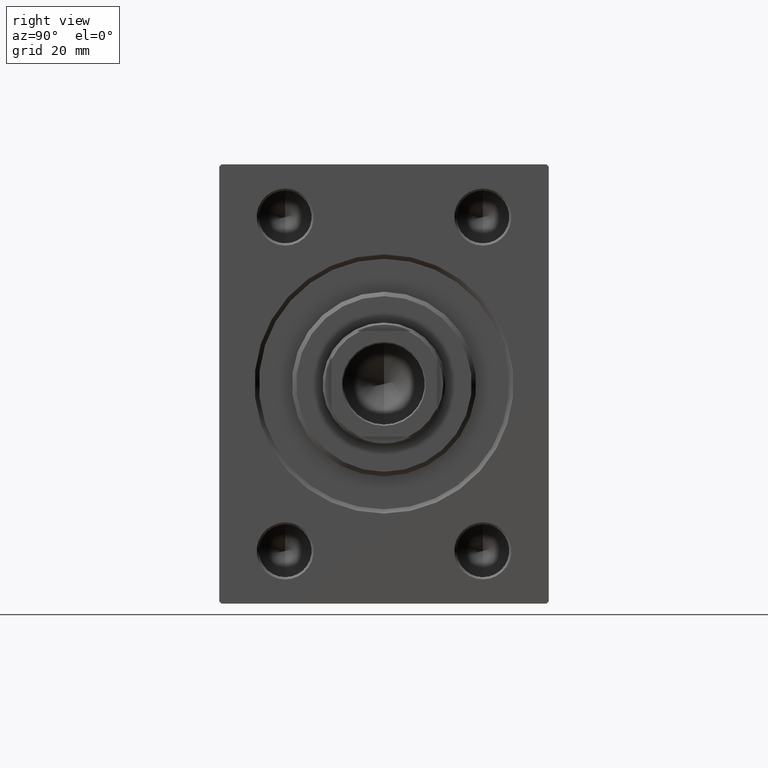
[diagram: clean part render]
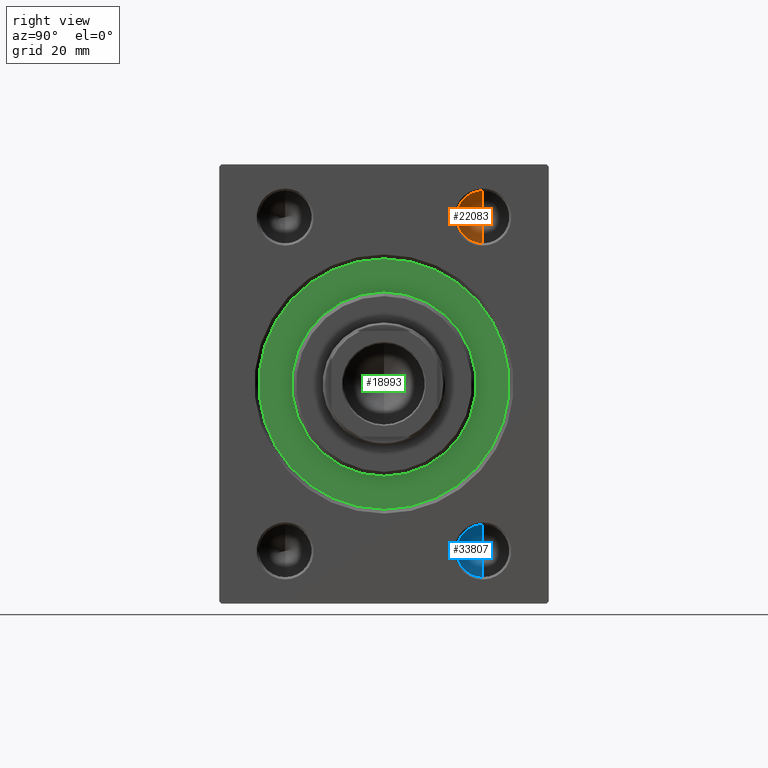
[diagram: same view with three faces highlighted in distinct colors, each labeled with its STEP entity id]
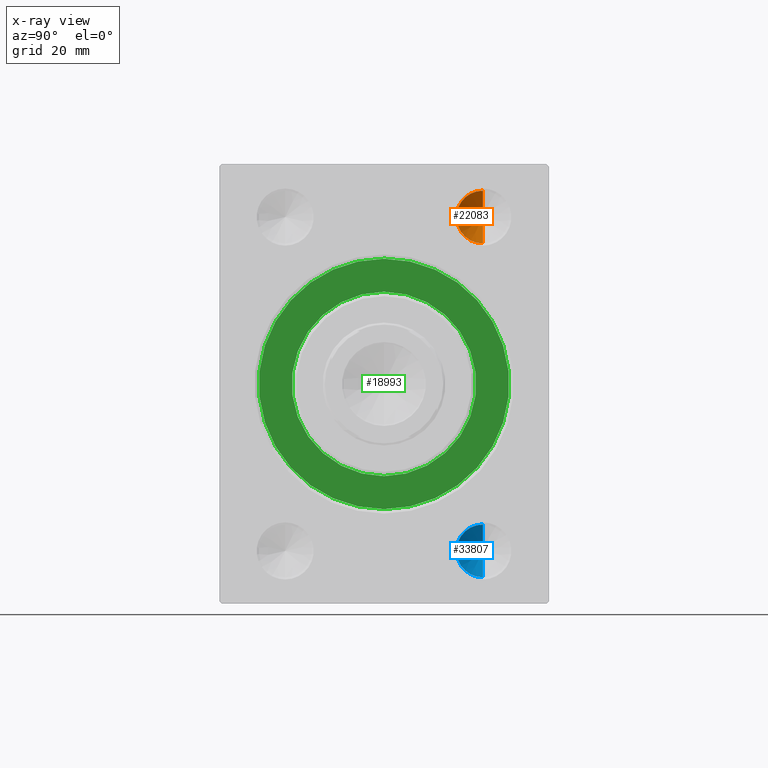
[diagram: x-ray of the same camera — body ghosted, the three highlighted faces saturated]
A machine part, right view with three faces highlighted in distinct colors.
The next image is the same camera in x-ray (body ghosted, the three faces saturated) — at least one of them is partly hidden behind the body in this view.
Their STEP definitions:

[orange] entity #22083 — the highlighted conical surface has half-angle 59 deg.
#871 = CARTESIAN_POINT ( 'NONE',  ( 23.60516371416536074, 22.49999999999998579, -38.00000000000000000 ) ) ;
#1373 = CARTESIAN_POINT ( 'NONE',  ( 20.00000000000000000, 22.49999999999999289, -44.00000000000000000 ) ) ;
#3926 = ORIENTED_EDGE ( 'NONE', *, *, #17652, .T. ) ;
#4791 = DIRECTION ( 'NONE',  ( 0.000000000000000000, 0.000000000000000000, 1.000000000000000000 ) ) ;
#10217 = CARTESIAN_POINT ( 'NONE',  ( 20.00000000000000000, 22.49999999999999289, -38.00000000000000000 ) ) ;
#11031 = ORIENTED_EDGE ( 'NONE', *, *, #31404, .T. ) ;
#11674 = AXIS2_PLACEMENT_3D ( 'NONE', #10217, #17037, #34540 ) ;
#11907 = LINE ( 'NONE', #28741, #14422 ) ;
#14422 = VECTOR ( 'NONE', #21712, 1000.000000000000000 ) ;
#14582 = CONICAL_SURFACE ( 'NONE', #11674, 5.999999999999998224, 1.029744258676653867 ) ;
#15167 = ORIENTED_EDGE ( 'NONE', *, *, #15689, .F. ) ;
#15689 = EDGE_CURVE ( 'NONE', #41168, #29986, #11907, .T. ) ;
#17037 = DIRECTION ( 'NONE',  ( -1.000000000000000000, -0.000000000000000000, -0.000000000000000000 ) ) ;
#17652 = EDGE_CURVE ( 'NONE', #17686, #29986, #39135, .T. ) ;
#17686 = VERTEX_POINT ( 'NONE', #1373 ) ;
#18025 = DIRECTION ( 'NONE',  ( -0.5150380749100547106, 1.049727191138618326E-16, -0.8571673007021120005 ) ) ;
#20673 = FACE_OUTER_BOUND ( 'NONE', #44239, .T. ) ;
#21712 = DIRECTION ( 'NONE',  ( -0.5150380749100547106, 0.000000000000000000, 0.8571673007021120005 ) ) ;
#22083 = ADVANCED_FACE ( 'NONE', ( #20673 ), #14582, .F. ) ;
#24614 = LINE ( 'NONE', #25067, #39714 ) ;
#25067 = CARTESIAN_POINT ( 'NONE',  ( 20.00000000000000000, 22.49999999999999289, -44.00000000000000000 ) ) ;
#28741 = CARTESIAN_POINT ( 'NONE',  ( 20.00000000000000000, 22.49999999999999289, -32.00000000000000000 ) ) ;
#29986 = VERTEX_POINT ( 'NONE', #43989 ) ;
#31404 = EDGE_CURVE ( 'NONE', #41168, #17686, #24614, .T. ) ;
#34540 = DIRECTION ( 'NONE',  ( 0.000000000000000000, 0.000000000000000000, 1.000000000000000000 ) ) ;
#35283 = DIRECTION ( 'NONE',  ( -1.000000000000000000, -0.000000000000000000, -0.000000000000000000 ) ) ;
#39135 = CIRCLE ( 'NONE', #43519, 5.999999999999998224 ) ;
#39714 = VECTOR ( 'NONE', #18025, 1000.000000000000000 ) ;
#41168 = VERTEX_POINT ( 'NONE', #871 ) ;
#43021 = CARTESIAN_POINT ( 'NONE',  ( 20.00000000000000000, 22.49999999999999289, -38.00000000000000000 ) ) ;
#43519 = AXIS2_PLACEMENT_3D ( 'NONE', #43021, #35283, #4791 ) ;
#43989 = CARTESIAN_POINT ( 'NONE',  ( 20.00000000000000000, 22.49999999999999289, -32.00000000000000000 ) ) ;
#44239 = EDGE_LOOP ( 'NONE', ( #15167, #11031, #3926 ) ) ;

[blue] entity #33807 — the highlighted conical surface has half-angle 59 deg.
#860 = CARTESIAN_POINT ( 'NONE',  ( 20.00000000000000000, 22.49999999999999289, 44.00000000000000000 ) ) ;
#3201 = CARTESIAN_POINT ( 'NONE',  ( 20.00000000000000000, 22.49999999999999289, 32.00000000000000000 ) ) ;
#4032 = LINE ( 'NONE', #860, #18065 ) ;
#5376 = EDGE_CURVE ( 'NONE', #18192, #13691, #9383, .T. ) ;
#6234 = EDGE_LOOP ( 'NONE', ( #18521, #12811, #20365 ) ) ;
#7694 = DIRECTION ( 'NONE',  ( -0.5150380749100547106, 0.000000000000000000, 0.8571673007021120005 ) ) ;
#9383 = LINE ( 'NONE', #3201, #36021 ) ;
#12385 = DIRECTION ( 'NONE',  ( 0.000000000000000000, 0.000000000000000000, 1.000000000000000000 ) ) ;
#12811 = ORIENTED_EDGE ( 'NONE', *, *, #5376, .T. ) ;
#13691 = VERTEX_POINT ( 'NONE', #20542 ) ;
#18065 = VECTOR ( 'NONE', #7694, 1000.000000000000000 ) ;
#18192 = VERTEX_POINT ( 'NONE', #37639 ) ;
#18521 = ORIENTED_EDGE ( 'NONE', *, *, #40347, .F. ) ;
#18992 = CARTESIAN_POINT ( 'NONE',  ( 20.00000000000000000, 22.49999999999999289, 38.00000000000000000 ) ) ;
#20365 = ORIENTED_EDGE ( 'NONE', *, *, #43982, .T. ) ;
#20542 = CARTESIAN_POINT ( 'NONE',  ( 20.00000000000000000, 22.49999999999999289, 32.00000000000000000 ) ) ;
#22420 = CARTESIAN_POINT ( 'NONE',  ( 20.00000000000000000, 22.49999999999999289, 38.00000000000000000 ) ) ;
#22648 = DIRECTION ( 'NONE',  ( 0.000000000000000000, 0.000000000000000000, 1.000000000000000000 ) ) ;
#22860 = DIRECTION ( 'NONE',  ( -1.000000000000000000, -0.000000000000000000, -0.000000000000000000 ) ) ;
#25359 = DIRECTION ( 'NONE',  ( -1.000000000000000000, -0.000000000000000000, -0.000000000000000000 ) ) ;
#26658 = DIRECTION ( 'NONE',  ( -0.5150380749100547106, 1.049727191138618326E-16, -0.8571673007021120005 ) ) ;
#33807 = ADVANCED_FACE ( 'NONE', ( #43321 ), #44155, .F. ) ;
#35623 = AXIS2_PLACEMENT_3D ( 'NONE', #18992, #25359, #12385 ) ;
#36021 = VECTOR ( 'NONE', #26658, 1000.000000000000000 ) ;
#37639 = CARTESIAN_POINT ( 'NONE',  ( 23.60516371416536074, 22.49999999999998579, 38.00000000000000000 ) ) ;
#38262 = VERTEX_POINT ( 'NONE', #38930 ) ;
#38930 = CARTESIAN_POINT ( 'NONE',  ( 20.00000000000000000, 22.49999999999999289, 44.00000000000000000 ) ) ;
#40347 = EDGE_CURVE ( 'NONE', #18192, #38262, #4032, .T. ) ;
#42713 = AXIS2_PLACEMENT_3D ( 'NONE', #22420, #22860, #22648 ) ;
#43321 = FACE_OUTER_BOUND ( 'NONE', #6234, .T. ) ;
#43982 = EDGE_CURVE ( 'NONE', #13691, #38262, #45057, .T. ) ;
#44155 = CONICAL_SURFACE ( 'NONE', #42713, 5.999999999999998224, 1.029744258676653867 ) ;
#45057 = CIRCLE ( 'NONE', #35623, 5.999999999999998224 ) ;

[green] entity #18993 — the highlighted planar face has unit normal (-1, 0, 0).
#662 = PLANE ( 'NONE',  #22486 ) ;
#2584 = EDGE_CURVE ( 'NONE', #42399, #32381, #14894, .T. ) ;
#2766 = VERTEX_POINT ( 'NONE', #3529 ) ;
#3529 = CARTESIAN_POINT ( 'NONE',  ( 0.000000000000000000, 0.000000000000000000, 21.00000000000000000 ) ) ;
#4538 = FACE_OUTER_BOUND ( 'NONE', #15712, .T. ) ;
#5445 = DIRECTION ( 'NONE',  ( -1.000000000000000000, 0.000000000000000000, 0.000000000000000000 ) ) ;
#6491 = DIRECTION ( 'NONE',  ( 0.000000000000000000, 0.000000000000000000, -1.000000000000000000 ) ) ;
#7296 = AXIS2_PLACEMENT_3D ( 'NONE', #16361, #5445, #30223 ) ;
#7310 = ORIENTED_EDGE ( 'NONE', *, *, #27018, .F. ) ;
#7500 = CARTESIAN_POINT ( 'NONE',  ( 0.000000000000000000, 0.000000000000000000, 0.000000000000000000 ) ) ;
#7617 = AXIS2_PLACEMENT_3D ( 'NONE', #13566, #27429, #44271 ) ;
#8550 = DIRECTION ( 'NONE',  ( 1.000000000000000000, -0.000000000000000000, 0.000000000000000000 ) ) ;
#8780 = CARTESIAN_POINT ( 'NONE',  ( 0.000000000000000000, 0.000000000000000000, 0.000000000000000000 ) ) ;
#13473 = ORIENTED_EDGE ( 'NONE', *, *, #2584, .F. ) ;
#13566 = CARTESIAN_POINT ( 'NONE',  ( 0.000000000000000000, 0.000000000000000000, 0.000000000000000000 ) ) ;
#13902 = AXIS2_PLACEMENT_3D ( 'NONE', #28078, #41059, #6491 ) ;
#14554 = DIRECTION ( 'NONE',  ( -1.000000000000000000, 0.000000000000000000, 0.000000000000000000 ) ) ;
#14894 = CIRCLE ( 'NONE', #7617, 28.50000000000000000 ) ;
#15310 = CIRCLE ( 'NONE', #7296, 28.50000000000000000 ) ;
#15712 = EDGE_LOOP ( 'NONE', ( #27888, #13473 ) ) ;
#16361 = CARTESIAN_POINT ( 'NONE',  ( 0.000000000000000000, 0.000000000000000000, 0.000000000000000000 ) ) ;
#16796 = CIRCLE ( 'NONE', #13902, 21.00000000000000000 ) ;
#17732 = VERTEX_POINT ( 'NONE', #42344 ) ;
#18993 = ADVANCED_FACE ( 'NONE', ( #32079, #4538 ), #662, .F. ) ;
#20428 = AXIS2_PLACEMENT_3D ( 'NONE', #8780, #8550, #29921 ) ;
#22030 = EDGE_CURVE ( 'NONE', #32381, #42399, #15310, .T. ) ;
#22486 = AXIS2_PLACEMENT_3D ( 'NONE', #7500, #14554, #42526 ) ;
#23849 = EDGE_CURVE ( 'NONE', #2766, #17732, #16796, .T. ) ;
#25937 = CARTESIAN_POINT ( 'NONE',  ( 0.000000000000000000, 3.490243377569956456E-15, 28.50000000000000000 ) ) ;
#26237 = CIRCLE ( 'NONE', #20428, 21.00000000000000000 ) ;
#26661 = ORIENTED_EDGE ( 'NONE', *, *, #23849, .F. ) ;
#27018 = EDGE_CURVE ( 'NONE', #17732, #2766, #26237, .T. ) ;
#27429 = DIRECTION ( 'NONE',  ( -1.000000000000000000, 0.000000000000000000, 0.000000000000000000 ) ) ;
#27888 = ORIENTED_EDGE ( 'NONE', *, *, #22030, .F. ) ;
#28078 = CARTESIAN_POINT ( 'NONE',  ( 0.000000000000000000, 0.000000000000000000, 0.000000000000000000 ) ) ;
#29921 = DIRECTION ( 'NONE',  ( 0.000000000000000000, 0.000000000000000000, -1.000000000000000000 ) ) ;
#30223 = DIRECTION ( 'NONE',  ( 0.000000000000000000, 0.000000000000000000, 1.000000000000000000 ) ) ;
#31160 = EDGE_LOOP ( 'NONE', ( #26661, #7310 ) ) ;
#32079 = FACE_BOUND ( 'NONE', #31160, .T. ) ;
#32381 = VERTEX_POINT ( 'NONE', #33244 ) ;
#33244 = CARTESIAN_POINT ( 'NONE',  ( 0.000000000000000000, 0.000000000000000000, -28.50000000000000000 ) ) ;
#41059 = DIRECTION ( 'NONE',  ( 1.000000000000000000, -0.000000000000000000, 0.000000000000000000 ) ) ;
#42344 = CARTESIAN_POINT ( 'NONE',  ( 0.000000000000000000, 2.571758278209441661E-15, -21.00000000000000000 ) ) ;
#42399 = VERTEX_POINT ( 'NONE', #25937 ) ;
#42526 = DIRECTION ( 'NONE',  ( 0.000000000000000000, 0.000000000000000000, 1.000000000000000000 ) ) ;
#44271 = DIRECTION ( 'NONE',  ( 0.000000000000000000, 0.000000000000000000, 1.000000000000000000 ) ) ;